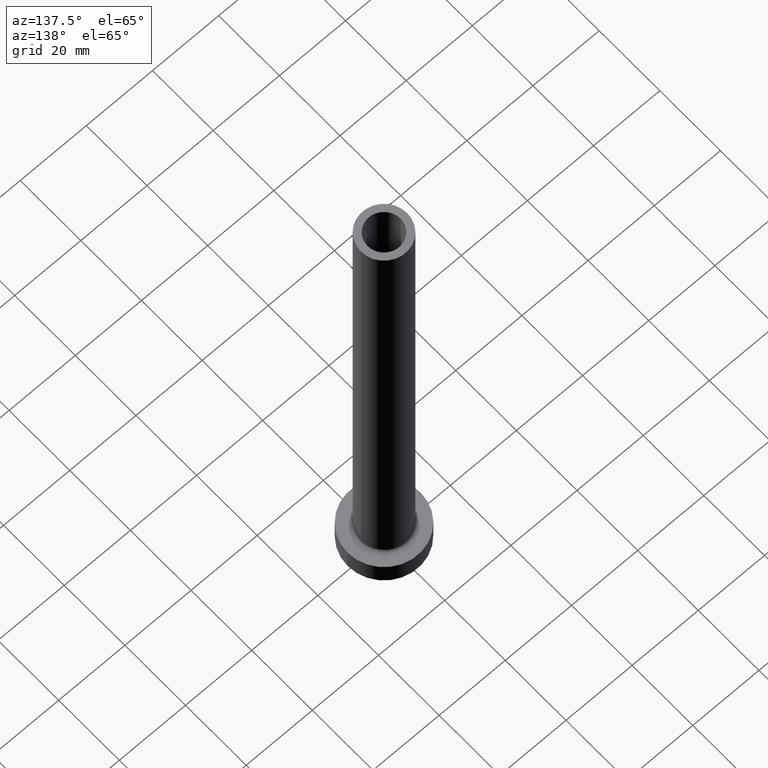
[diagram: clean part render]
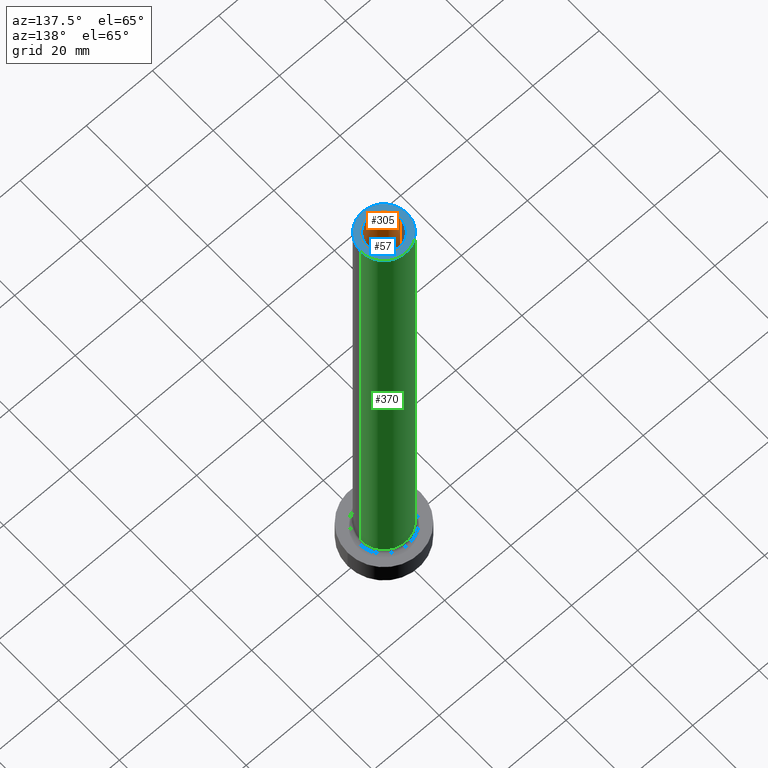
[diagram: same view with three faces highlighted in distinct colors, each labeled with its STEP entity id]
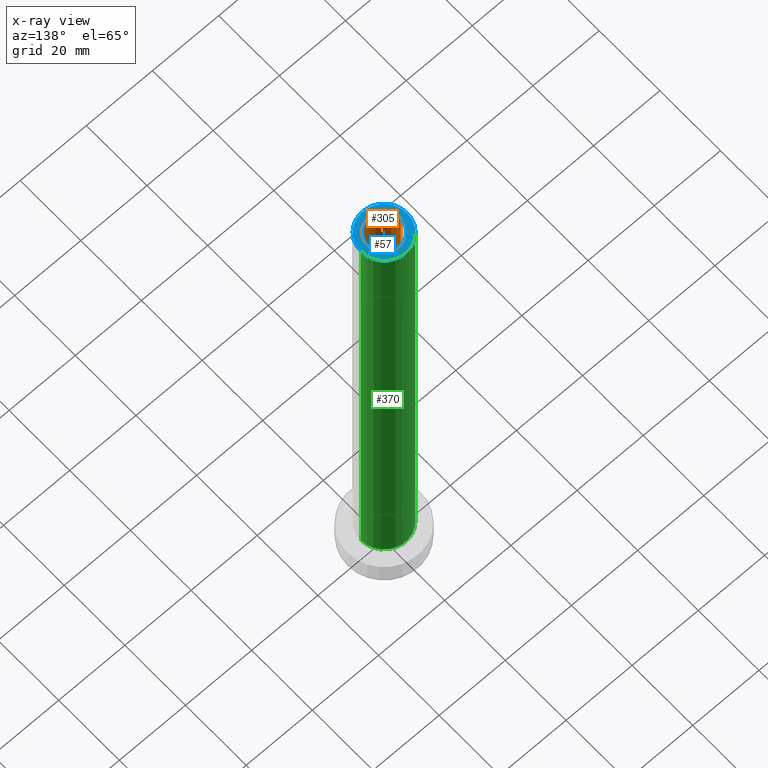
[diagram: x-ray of the same camera — body ghosted, the three highlighted faces saturated]
A machine part, auxiliary view with three faces highlighted in distinct colors.
The next image is the same camera in x-ray (body ghosted, the three faces saturated) — at least one of them is partly hidden behind the body in this view.
Their STEP definitions:

[orange] entity #305 — the highlighted cylindrical surface (edge-blend (fillet) strip) has radius 5 mm, axis along (0, 0, -1).
#10 = ORIENTED_EDGE ( 'NONE', *, *, #42, .F. ) ;
#14 = EDGE_CURVE ( 'NONE', #71, #227, #277, .T. ) ;
#21 = FACE_OUTER_BOUND ( 'NONE', #80, .T. ) ;
#28 = CARTESIAN_POINT ( 'NONE',  ( -5.000000000000000000, 0.000000000000000000, 160.0000000000000000 ) ) ;
#36 = CIRCLE ( 'NONE', #99, 5.000000000000000000 ) ;
#40 = ORIENTED_EDGE ( 'NONE', *, *, #168, .T. ) ;
#42 = EDGE_CURVE ( 'NONE', #114, #227, #36, .T. ) ;
#52 = LINE ( 'NONE', #28, #233 ) ;
#63 = DIRECTION ( 'NONE',  ( 0.000000000000000000, 0.000000000000000000, -1.000000000000000000 ) ) ;
#67 = CARTESIAN_POINT ( 'NONE',  ( 0.000000000000000000, 0.000000000000000000, 160.0000000000000000 ) ) ;
#71 = VERTEX_POINT ( 'NONE', #142 ) ;
#72 = DIRECTION ( 'NONE',  ( -1.000000000000000000, 0.000000000000000000, 0.000000000000000000 ) ) ;
#73 = CIRCLE ( 'NONE', #193, 5.000000000000000000 ) ;
#80 = EDGE_LOOP ( 'NONE', ( #40, #143, #10, #361 ) ) ;
#87 = DIRECTION ( 'NONE',  ( 0.000000000000000000, 0.000000000000000000, -1.000000000000000000 ) ) ;
#99 = AXIS2_PLACEMENT_3D ( 'NONE', #145, #258, #392 ) ;
#114 = VERTEX_POINT ( 'NONE', #449 ) ;
#124 = CARTESIAN_POINT ( 'NONE',  ( -5.000000000000000000, 0.000000000000000000, 160.0000000000000000 ) ) ;
#142 = CARTESIAN_POINT ( 'NONE',  ( 5.000000000000000000, 6.123233995736765296E-16, 160.0000000000000000 ) ) ;
#143 = ORIENTED_EDGE ( 'NONE', *, *, #14, .T. ) ;
#145 = CARTESIAN_POINT ( 'NONE',  ( 0.000000000000000000, 0.000000000000000000, 115.0000000000000000 ) ) ;
#168 = EDGE_CURVE ( 'NONE', #259, #71, #73, .T. ) ;
#183 = AXIS2_PLACEMENT_3D ( 'NONE', #267, #87, #72 ) ;
#193 = AXIS2_PLACEMENT_3D ( 'NONE', #67, #292, #348 ) ;
#215 = VECTOR ( 'NONE', #63, 1000.000000000000000 ) ;
#227 = VERTEX_POINT ( 'NONE', #328 ) ;
#233 = VECTOR ( 'NONE', #307, 1000.000000000000000 ) ;
#258 = DIRECTION ( 'NONE',  ( 0.000000000000000000, 0.000000000000000000, 1.000000000000000000 ) ) ;
#259 = VERTEX_POINT ( 'NONE', #124 ) ;
#263 = CYLINDRICAL_SURFACE ( 'NONE', #183, 5.000000000000000000 ) ;
#267 = CARTESIAN_POINT ( 'NONE',  ( 0.000000000000000000, 0.000000000000000000, 160.0000000000000000 ) ) ;
#277 = LINE ( 'NONE', #406, #215 ) ;
#292 = DIRECTION ( 'NONE',  ( 0.000000000000000000, 0.000000000000000000, 1.000000000000000000 ) ) ;
#305 = ADVANCED_FACE ( 'NONE', ( #21 ), #263, .F. ) ;
#307 = DIRECTION ( 'NONE',  ( 0.000000000000000000, 0.000000000000000000, -1.000000000000000000 ) ) ;
#328 = CARTESIAN_POINT ( 'NONE',  ( 5.000000000000000000, 6.123233995736765296E-16, 115.0000000000000000 ) ) ;
#337 = EDGE_CURVE ( 'NONE', #259, #114, #52, .T. ) ;
#348 = DIRECTION ( 'NONE',  ( 1.000000000000000000, 0.000000000000000000, 0.000000000000000000 ) ) ;
#361 = ORIENTED_EDGE ( 'NONE', *, *, #337, .F. ) ;
#392 = DIRECTION ( 'NONE',  ( 1.000000000000000000, 0.000000000000000000, 0.000000000000000000 ) ) ;
#406 = CARTESIAN_POINT ( 'NONE',  ( 5.000000000000000000, 6.123233995736765296E-16, 160.0000000000000000 ) ) ;
#449 = CARTESIAN_POINT ( 'NONE',  ( -5.000000000000000000, 0.000000000000000000, 115.0000000000000000 ) ) ;

[blue] entity #57 — the highlighted planar face has unit normal (0, 0, 1).
#12 = DIRECTION ( 'NONE',  ( 0.000000000000000000, 0.000000000000000000, 1.000000000000000000 ) ) ;
#15 = VERTEX_POINT ( 'NONE', #131 ) ;
#18 = ORIENTED_EDGE ( 'NONE', *, *, #69, .F. ) ;
#57 = ADVANCED_FACE ( 'NONE', ( #247, #113 ), #76, .T. ) ;
#67 = CARTESIAN_POINT ( 'NONE',  ( 0.000000000000000000, 0.000000000000000000, 160.0000000000000000 ) ) ;
#69 = EDGE_CURVE ( 'NONE', #71, #259, #144, .T. ) ;
#71 = VERTEX_POINT ( 'NONE', #142 ) ;
#73 = CIRCLE ( 'NONE', #193, 5.000000000000000000 ) ;
#76 = PLANE ( 'NONE',  #346 ) ;
#113 = FACE_OUTER_BOUND ( 'NONE', #398, .T. ) ;
#121 = CIRCLE ( 'NONE', #368, 7.000000000000000888 ) ;
#124 = CARTESIAN_POINT ( 'NONE',  ( -5.000000000000000000, 0.000000000000000000, 160.0000000000000000 ) ) ;
#131 = CARTESIAN_POINT ( 'NONE',  ( -7.000000000000000888, 0.000000000000000000, 160.0000000000000000 ) ) ;
#140 = DIRECTION ( 'NONE',  ( 1.000000000000000000, 0.000000000000000000, 0.000000000000000000 ) ) ;
#142 = CARTESIAN_POINT ( 'NONE',  ( 5.000000000000000000, 6.123233995736765296E-16, 160.0000000000000000 ) ) ;
#144 = CIRCLE ( 'NONE', #356, 5.000000000000000000 ) ;
#146 = ORIENTED_EDGE ( 'NONE', *, *, #350, .T. ) ;
#159 = DIRECTION ( 'NONE',  ( 1.000000000000000000, 0.000000000000000000, 0.000000000000000000 ) ) ;
#160 = CARTESIAN_POINT ( 'NONE',  ( 0.000000000000000000, 0.000000000000000000, 160.0000000000000000 ) ) ;
#168 = EDGE_CURVE ( 'NONE', #259, #71, #73, .T. ) ;
#185 = CARTESIAN_POINT ( 'NONE',  ( 0.000000000000000000, 0.000000000000000000, 160.0000000000000000 ) ) ;
#193 = AXIS2_PLACEMENT_3D ( 'NONE', #67, #292, #348 ) ;
#213 = DIRECTION ( 'NONE',  ( 0.000000000000000000, 0.000000000000000000, 1.000000000000000000 ) ) ;
#221 = EDGE_LOOP ( 'NONE', ( #319, #18 ) ) ;
#246 = CARTESIAN_POINT ( 'NONE',  ( 0.000000000000000000, 0.000000000000000000, 160.0000000000000000 ) ) ;
#247 = FACE_BOUND ( 'NONE', #221, .T. ) ;
#259 = VERTEX_POINT ( 'NONE', #124 ) ;
#274 = DIRECTION ( 'NONE',  ( 0.000000000000000000, 0.000000000000000000, 1.000000000000000000 ) ) ;
#275 = CARTESIAN_POINT ( 'NONE',  ( 0.000000000000000000, 0.000000000000000000, 160.0000000000000000 ) ) ;
#288 = DIRECTION ( 'NONE',  ( 1.000000000000000000, 0.000000000000000000, -0.000000000000000000 ) ) ;
#292 = DIRECTION ( 'NONE',  ( 0.000000000000000000, 0.000000000000000000, 1.000000000000000000 ) ) ;
#311 = EDGE_CURVE ( 'NONE', #15, #431, #121, .T. ) ;
#316 = CIRCLE ( 'NONE', #381, 7.000000000000000888 ) ;
#319 = ORIENTED_EDGE ( 'NONE', *, *, #168, .F. ) ;
#327 = CARTESIAN_POINT ( 'NONE',  ( 7.000000000000000888, 8.572527594031474176E-16, 160.0000000000000000 ) ) ;
#339 = DIRECTION ( 'NONE',  ( 0.000000000000000000, 0.000000000000000000, 1.000000000000000000 ) ) ;
#346 = AXIS2_PLACEMENT_3D ( 'NONE', #185, #213, #288 ) ;
#348 = DIRECTION ( 'NONE',  ( 1.000000000000000000, 0.000000000000000000, 0.000000000000000000 ) ) ;
#350 = EDGE_CURVE ( 'NONE', #431, #15, #316, .T. ) ;
#356 = AXIS2_PLACEMENT_3D ( 'NONE', #246, #12, #140 ) ;
#368 = AXIS2_PLACEMENT_3D ( 'NONE', #160, #274, #159 ) ;
#381 = AXIS2_PLACEMENT_3D ( 'NONE', #275, #339, #416 ) ;
#398 = EDGE_LOOP ( 'NONE', ( #405, #146 ) ) ;
#405 = ORIENTED_EDGE ( 'NONE', *, *, #311, .T. ) ;
#416 = DIRECTION ( 'NONE',  ( 1.000000000000000000, 0.000000000000000000, 0.000000000000000000 ) ) ;
#431 = VERTEX_POINT ( 'NONE', #327 ) ;

[green] entity #370 — the highlighted cylindrical surface (edge-blend (fillet) strip) has radius 7 mm, axis along (-0, -0, -1).
#15 = VERTEX_POINT ( 'NONE', #131 ) ;
#35 = VERTEX_POINT ( 'NONE', #318 ) ;
#48 = AXIS2_PLACEMENT_3D ( 'NONE', #382, #414, #451 ) ;
#59 = FACE_OUTER_BOUND ( 'NONE', #84, .T. ) ;
#84 = EDGE_LOOP ( 'NONE', ( #151, #395, #150, #422 ) ) ;
#85 = CIRCLE ( 'NONE', #48, 7.000000000000000888 ) ;
#91 = CARTESIAN_POINT ( 'NONE',  ( 0.000000000000000000, 0.000000000000000000, 160.0000000000000000 ) ) ;
#125 = LINE ( 'NONE', #276, #419 ) ;
#131 = CARTESIAN_POINT ( 'NONE',  ( -7.000000000000000888, 0.000000000000000000, 160.0000000000000000 ) ) ;
#135 = CARTESIAN_POINT ( 'NONE',  ( 7.000000000000000888, 8.572527594031474176E-16, 7.700000000000012612 ) ) ;
#139 = LINE ( 'NONE', #403, #333 ) ;
#150 = ORIENTED_EDGE ( 'NONE', *, *, #317, .T. ) ;
#151 = ORIENTED_EDGE ( 'NONE', *, *, #350, .F. ) ;
#211 = VERTEX_POINT ( 'NONE', #135 ) ;
#236 = DIRECTION ( 'NONE',  ( -0.000000000000000000, -0.000000000000000000, -1.000000000000000000 ) ) ;
#237 = DIRECTION ( 'NONE',  ( -0.000000000000000000, -0.000000000000000000, -1.000000000000000000 ) ) ;
#275 = CARTESIAN_POINT ( 'NONE',  ( 0.000000000000000000, 0.000000000000000000, 160.0000000000000000 ) ) ;
#276 = CARTESIAN_POINT ( 'NONE',  ( -7.000000000000000888, 0.000000000000000000, 160.0000000000000000 ) ) ;
#313 = CYLINDRICAL_SURFACE ( 'NONE', #357, 7.000000000000000888 ) ;
#316 = CIRCLE ( 'NONE', #381, 7.000000000000000888 ) ;
#317 = EDGE_CURVE ( 'NONE', #211, #35, #85, .T. ) ;
#318 = CARTESIAN_POINT ( 'NONE',  ( -7.000000000000000888, 0.000000000000000000, 7.700000000000012612 ) ) ;
#327 = CARTESIAN_POINT ( 'NONE',  ( 7.000000000000000888, 8.572527594031474176E-16, 160.0000000000000000 ) ) ;
#332 = EDGE_CURVE ( 'NONE', #15, #35, #125, .T. ) ;
#333 = VECTOR ( 'NONE', #236, 1000.000000000000000 ) ;
#339 = DIRECTION ( 'NONE',  ( 0.000000000000000000, 0.000000000000000000, 1.000000000000000000 ) ) ;
#350 = EDGE_CURVE ( 'NONE', #431, #15, #316, .T. ) ;
#357 = AXIS2_PLACEMENT_3D ( 'NONE', #91, #237, #378 ) ;
#370 = ADVANCED_FACE ( 'NONE', ( #59 ), #313, .T. ) ;
#373 = DIRECTION ( 'NONE',  ( -0.000000000000000000, -0.000000000000000000, -1.000000000000000000 ) ) ;
#378 = DIRECTION ( 'NONE',  ( -1.000000000000000000, 0.000000000000000000, 0.000000000000000000 ) ) ;
#381 = AXIS2_PLACEMENT_3D ( 'NONE', #275, #339, #416 ) ;
#382 = CARTESIAN_POINT ( 'NONE',  ( 0.000000000000000000, 0.000000000000000000, 7.700000000000012612 ) ) ;
#395 = ORIENTED_EDGE ( 'NONE', *, *, #456, .T. ) ;
#403 = CARTESIAN_POINT ( 'NONE',  ( 7.000000000000000888, 8.572527594031474176E-16, 160.0000000000000000 ) ) ;
#414 = DIRECTION ( 'NONE',  ( 0.000000000000000000, 0.000000000000000000, 1.000000000000000000 ) ) ;
#416 = DIRECTION ( 'NONE',  ( 1.000000000000000000, 0.000000000000000000, 0.000000000000000000 ) ) ;
#419 = VECTOR ( 'NONE', #373, 1000.000000000000000 ) ;
#422 = ORIENTED_EDGE ( 'NONE', *, *, #332, .F. ) ;
#431 = VERTEX_POINT ( 'NONE', #327 ) ;
#451 = DIRECTION ( 'NONE',  ( 1.000000000000000000, 0.000000000000000000, 0.000000000000000000 ) ) ;
#456 = EDGE_CURVE ( 'NONE', #431, #211, #139, .T. ) ;